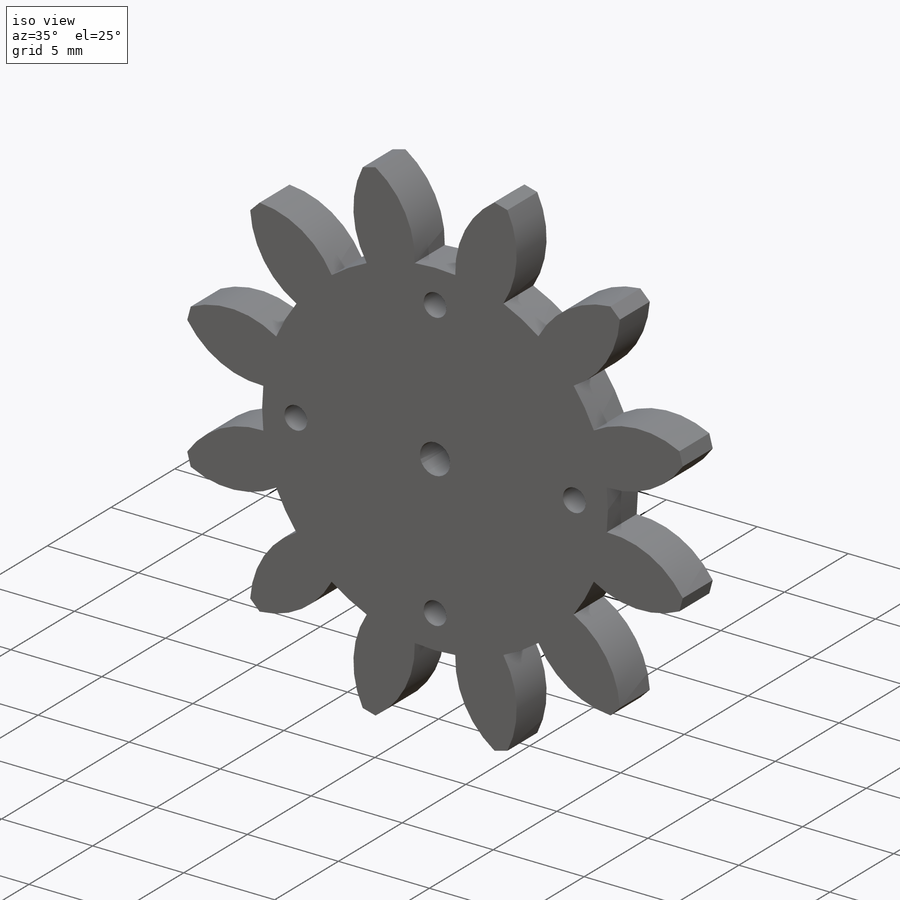
[diagram: iso view]
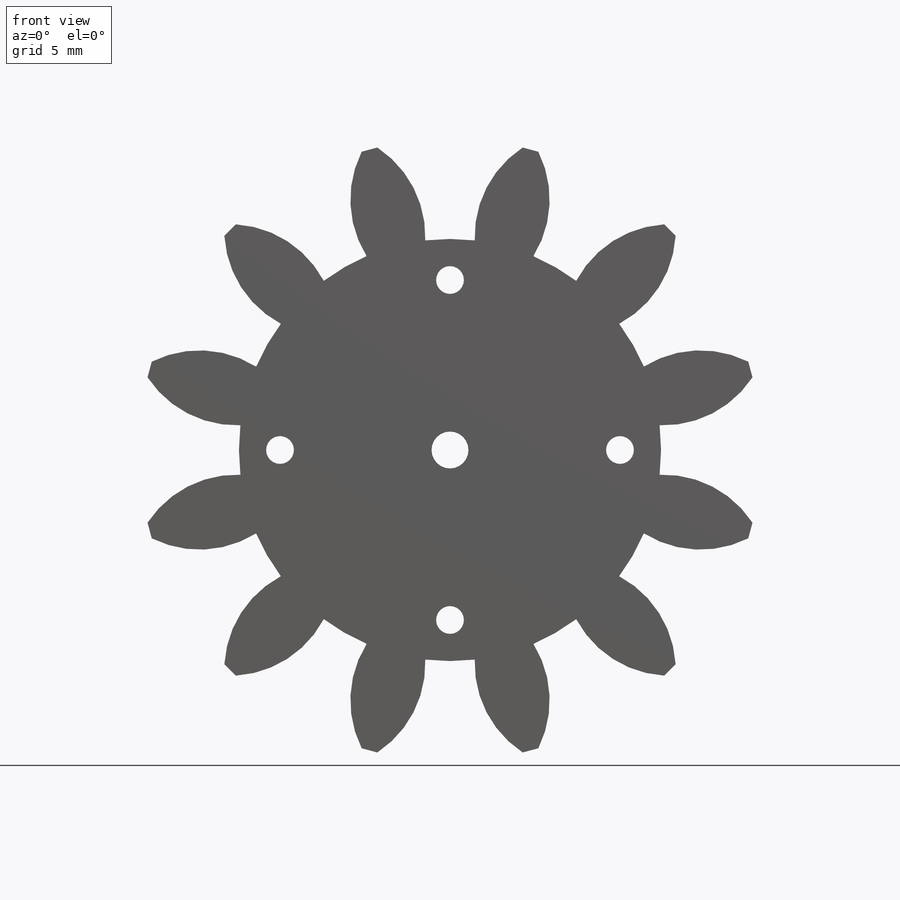
[diagram: front view]
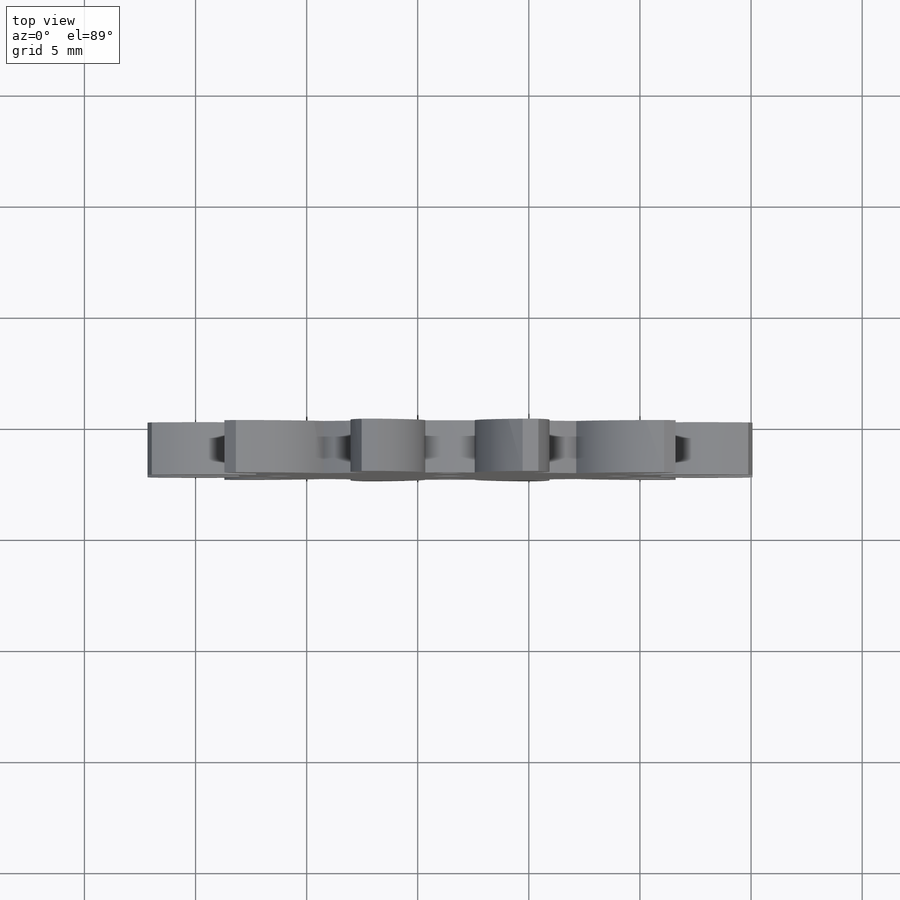
[diagram: top view]
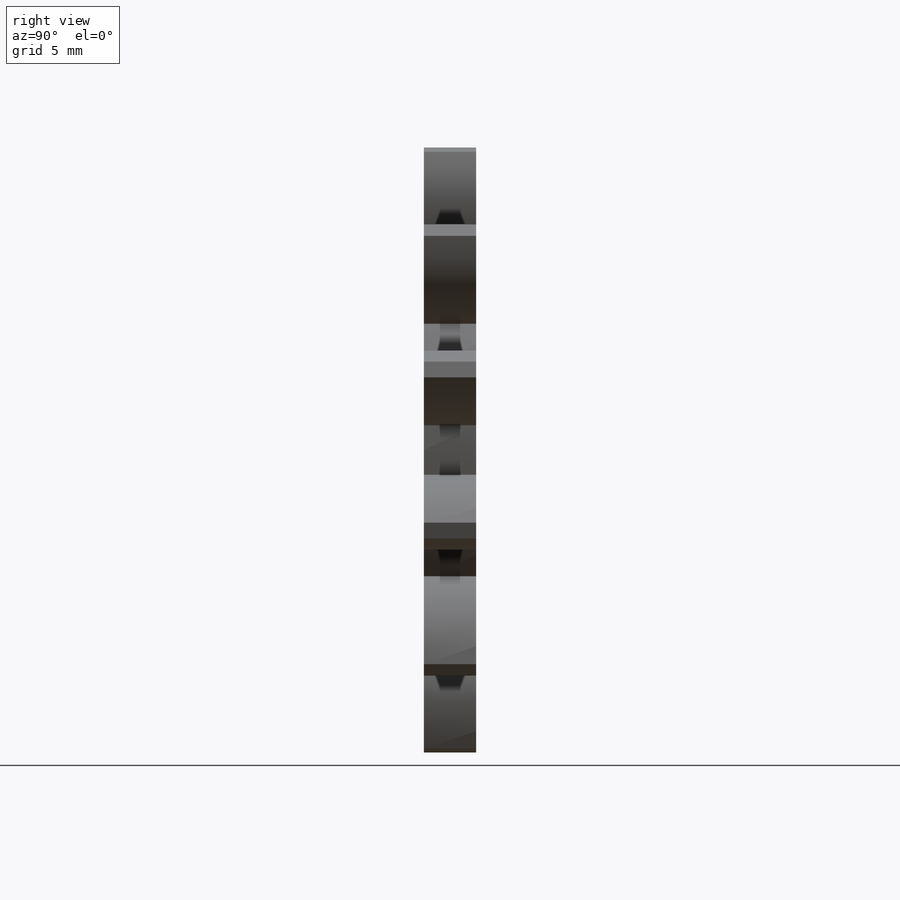
[diagram: right view]
SOLIDWORKS PART (.sldprt)
format: sldprt  version: not decoded by parser v0  size: 272,384 bytes
history: native  units: mm
features: sketch x3, plane x2, material x1, extrude x1, cut_extrude x1, pattern_circular x1 (+13 scaffold rows collapsed)
feature tree (22):
  scaffold x13  (default folders/planes/origin — collapsed)
  material  "Material <not specified>"
  sketch  "Sketch1"  dims[D1=1.66mm]
  extrude  "Boss-Extrude1"  Depth=2.35mm
  sketch  "Sketch2"  dims[D1=1.25mm D2=7.65mm]
  cut_extrude  "Cut-Extrude1"  Depth=10mm
  sketch  "Sketch4"
  plane  "Plane1"
  plane  "Plane2"
  pattern_circular  "CirPattern1"  Count=4 Angle=360deg
decode coverage: 5 of 6 modeling features carry decoded parameters
note: suppression state not decoded; provenance and decode notes live in map.json
